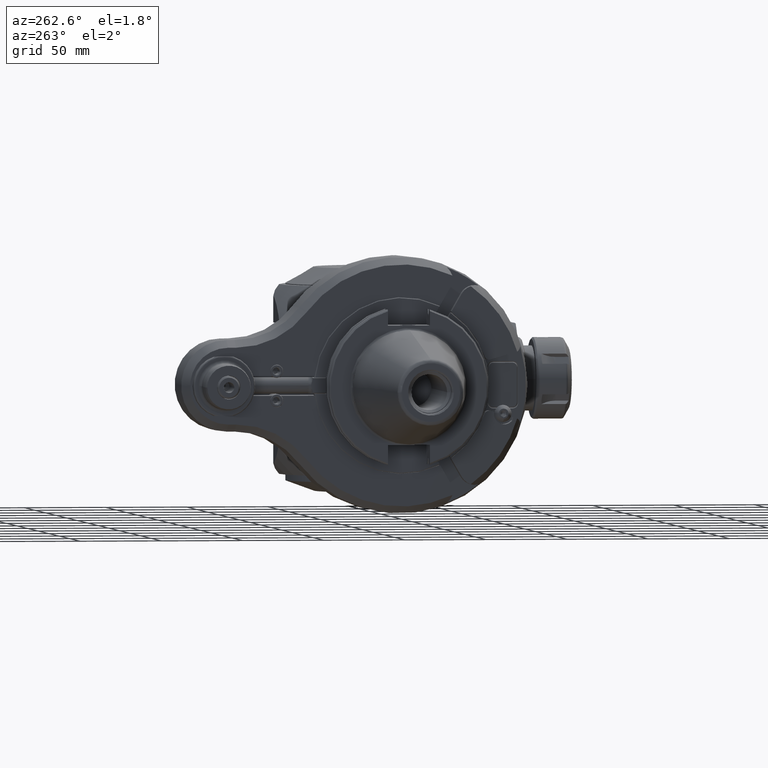
[diagram: clean part render]
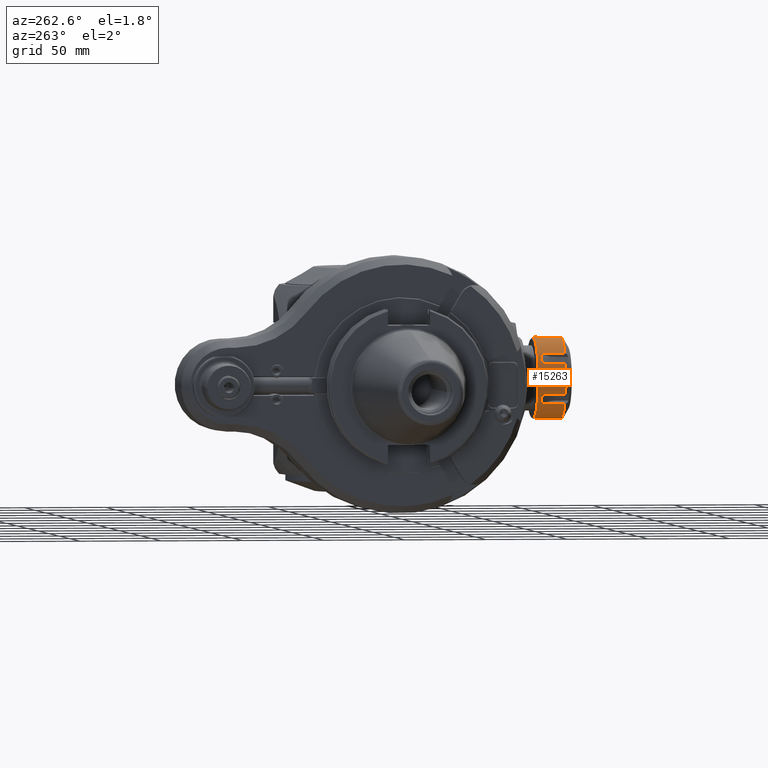
[diagram: same view with one face highlighted and labeled with its STEP entity id]
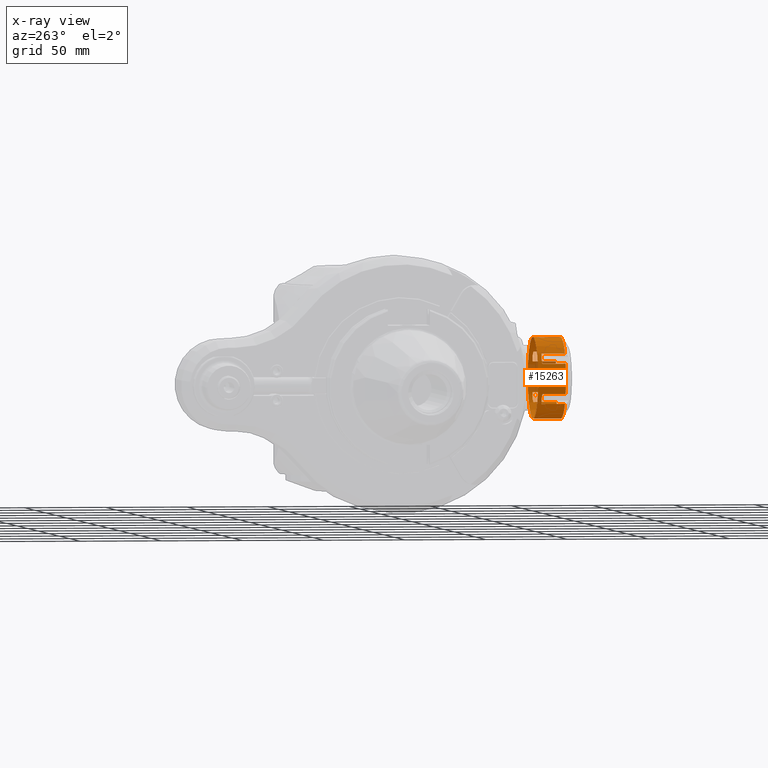
[diagram: x-ray of the same camera — body ghosted, the highlighted face saturated]
A machine part, auxiliary view. The second image highlights one B-rep face of the part: STEP entity #15263.
The next image is the same camera in x-ray: the body ghosted, the highlighted face saturated — about 13% of this face is hidden behind the body in this view.
In plain terms, the highlighted cylindrical surface (bore or boss wall) has radius 25 mm, axis along (-0, -1, -0).
Its self-contained STEP definition (entity closure, byte-faithful):
#822=B_SPLINE_CURVE_WITH_KNOTS('',3,(#40853,#40854,#40855,#40856,#40857,
#40858),.UNSPECIFIED.,.F.,.F.,(4,2,4),(1.28336863204988,1.29546874107901,
1.61589836926128),.UNSPECIFIED.);
#823=B_SPLINE_CURVE_WITH_KNOTS('',3,(#40866,#40867,#40868,#40869,#40870,
#40871,#40872,#40873,#40874,#40875),.UNSPECIFIED.,.F.,.F.,(4,2,2,2,4),(-1.94842810647365,
-1.93632799744472,-1.61589836926225,-1.29546874107978,-1.28336863205082),
 .UNSPECIFIED.);
#824=B_SPLINE_CURVE_WITH_KNOTS('',3,(#40883,#40884,#40885,#40886,#40887,
#40888,#40889,#40890,#40891,#40892),.UNSPECIFIED.,.F.,.F.,(4,2,2,2,4),(-1.94842810647313,
-1.93632799744435,-1.61589836926194,-1.29546874107953,-1.28336863205069),
 .UNSPECIFIED.);
#825=B_SPLINE_CURVE_WITH_KNOTS('',3,(#40900,#40901,#40902,#40903,#40904,
#40905,#40906,#40907,#40908,#40909),.UNSPECIFIED.,.F.,.F.,(4,2,2,2,4),(1.28336863204988,
1.29546874107901,1.61589836926128,1.93632799744356,1.94842810647227),
 .UNSPECIFIED.);
#826=B_SPLINE_CURVE_WITH_KNOTS('',3,(#40917,#40918,#40919,#40920,#40921,
#40922,#40923,#40924,#40925,#40926),.UNSPECIFIED.,.F.,.F.,(4,2,2,2,4),(1.28336863205082,
1.29546874107978,1.61589836926225,1.93632799744472,1.94842810647365),
 .UNSPECIFIED.);
#827=B_SPLINE_CURVE_WITH_KNOTS('',3,(#40934,#40935,#40936,#40937,#40938,
#40939,#40940,#40941,#40942,#40943),.UNSPECIFIED.,.F.,.F.,(4,2,2,2,4),(1.28336863205078,
1.29546874107953,1.61589836926194,1.93632799744435,1.94842810647304),
 .UNSPECIFIED.);
#828=B_SPLINE_CURVE_WITH_KNOTS('',3,(#40950,#40951,#40952,#40953,#40954,
#40955),.UNSPECIFIED.,.F.,.F.,(4,2,4),(1.61589836926128,1.93632799744356,
1.94842810647227),.UNSPECIFIED.);
#2024=FACE_OUTER_BOUND('',#3016,.T.);
#3016=EDGE_LOOP('',(#13639,#13640,#13641,#13642,#13643,#13644,#13645,#13646,
#13647,#13648,#13649,#13650,#13651,#13652,#13653,#13654,#13655,#13656,#13657,
#13658,#13659,#13660,#13661,#13662,#13663,#13664,#13665,#13666));
#4060=LINE('',#40860,#5093);
#4061=LINE('',#40864,#5094);
#4062=LINE('',#40877,#5095);
#4063=LINE('',#40881,#5096);
#4064=LINE('',#40894,#5097);
#4065=LINE('',#40898,#5098);
#4066=LINE('',#40911,#5099);
#4067=LINE('',#40915,#5100);
#4068=LINE('',#40928,#5101);
#4069=LINE('',#40932,#5102);
#4070=LINE('',#40945,#5103);
#4071=LINE('',#40949,#5104);
#4072=LINE('',#40956,#5105);
#5093=VECTOR('',#20968,14.29830773003);
#5094=VECTOR('',#20971,14.29830773003);
#5095=VECTOR('',#20972,14.29830773003);
#5096=VECTOR('',#20975,14.29830773003);
#5097=VECTOR('',#20976,14.29830773003);
#5098=VECTOR('',#20979,14.29830773003);
#5099=VECTOR('',#20980,14.29830773003);
#5100=VECTOR('',#20983,14.29830773003);
#5101=VECTOR('',#20984,14.29830773003);
#5102=VECTOR('',#20987,14.29830773003);
#5103=VECTOR('',#20988,14.29830773003);
#5104=VECTOR('',#20991,14.29830773003);
#5105=VECTOR('',#20992,25.);
#5923=CIRCLE('',#16925,25.);
#5924=CIRCLE('',#16927,25.);
#5925=CIRCLE('',#16928,25.);
#5926=CIRCLE('',#16929,25.);
#5927=CIRCLE('',#16930,25.);
#5928=CIRCLE('',#16931,25.);
#5929=CIRCLE('',#16932,25.);
#7290=VERTEX_POINT('',#40847);
#7291=VERTEX_POINT('',#40851);
#7292=VERTEX_POINT('',#40852);
#7293=VERTEX_POINT('',#40859);
#7294=VERTEX_POINT('',#40861);
#7295=VERTEX_POINT('',#40863);
#7296=VERTEX_POINT('',#40865);
#7297=VERTEX_POINT('',#40876);
#7298=VERTEX_POINT('',#40878);
#7299=VERTEX_POINT('',#40880);
#7300=VERTEX_POINT('',#40882);
#7301=VERTEX_POINT('',#40893);
#7302=VERTEX_POINT('',#40895);
#7303=VERTEX_POINT('',#40897);
#7304=VERTEX_POINT('',#40899);
#7305=VERTEX_POINT('',#40910);
#7306=VERTEX_POINT('',#40912);
#7307=VERTEX_POINT('',#40914);
#7308=VERTEX_POINT('',#40916);
#7309=VERTEX_POINT('',#40927);
#7310=VERTEX_POINT('',#40929);
#7311=VERTEX_POINT('',#40931);
#7312=VERTEX_POINT('',#40933);
#7313=VERTEX_POINT('',#40944);
#7314=VERTEX_POINT('',#40946);
#7315=VERTEX_POINT('',#40948);
#9443=EDGE_CURVE('',#7290,#7290,#5923,.T.);
#9445=EDGE_CURVE('',#7291,#7292,#822,.T.);
#9446=EDGE_CURVE('',#7291,#7293,#4060,.T.);
#9447=EDGE_CURVE('',#7294,#7293,#5924,.T.);
#9448=EDGE_CURVE('',#7294,#7295,#4061,.T.);
#9449=EDGE_CURVE('',#7295,#7296,#823,.T.);
#9450=EDGE_CURVE('',#7296,#7297,#4062,.T.);
#9451=EDGE_CURVE('',#7298,#7297,#5925,.T.);
#9452=EDGE_CURVE('',#7298,#7299,#4063,.T.);
#9453=EDGE_CURVE('',#7299,#7300,#824,.T.);
#9454=EDGE_CURVE('',#7300,#7301,#4064,.T.);
#9455=EDGE_CURVE('',#7302,#7301,#5926,.T.);
#9456=EDGE_CURVE('',#7302,#7303,#4065,.T.);
#9457=EDGE_CURVE('',#7304,#7303,#825,.T.);
#9458=EDGE_CURVE('',#7304,#7305,#4066,.T.);
#9459=EDGE_CURVE('',#7306,#7305,#5927,.T.);
#9460=EDGE_CURVE('',#7306,#7307,#4067,.T.);
#9461=EDGE_CURVE('',#7308,#7307,#826,.T.);
#9462=EDGE_CURVE('',#7308,#7309,#4068,.T.);
#9463=EDGE_CURVE('',#7310,#7309,#5928,.T.);
#9464=EDGE_CURVE('',#7310,#7311,#4069,.T.);
#9465=EDGE_CURVE('',#7312,#7311,#827,.T.);
#9466=EDGE_CURVE('',#7312,#7313,#4070,.T.);
#9467=EDGE_CURVE('',#7314,#7313,#5929,.T.);
#9468=EDGE_CURVE('',#7314,#7315,#4071,.T.);
#9469=EDGE_CURVE('',#7292,#7315,#828,.T.);
#9470=EDGE_CURVE('',#7292,#7290,#4072,.T.);
#13639=ORIENTED_EDGE('',*,*,#9445,.F.);
#13640=ORIENTED_EDGE('',*,*,#9446,.T.);
#13641=ORIENTED_EDGE('',*,*,#9447,.F.);
#13642=ORIENTED_EDGE('',*,*,#9448,.T.);
#13643=ORIENTED_EDGE('',*,*,#9449,.T.);
#13644=ORIENTED_EDGE('',*,*,#9450,.T.);
#13645=ORIENTED_EDGE('',*,*,#9451,.F.);
#13646=ORIENTED_EDGE('',*,*,#9452,.T.);
#13647=ORIENTED_EDGE('',*,*,#9453,.T.);
#13648=ORIENTED_EDGE('',*,*,#9454,.T.);
#13649=ORIENTED_EDGE('',*,*,#9455,.F.);
#13650=ORIENTED_EDGE('',*,*,#9456,.T.);
#13651=ORIENTED_EDGE('',*,*,#9457,.F.);
#13652=ORIENTED_EDGE('',*,*,#9458,.T.);
#13653=ORIENTED_EDGE('',*,*,#9459,.F.);
#13654=ORIENTED_EDGE('',*,*,#9460,.T.);
#13655=ORIENTED_EDGE('',*,*,#9461,.F.);
#13656=ORIENTED_EDGE('',*,*,#9462,.T.);
#13657=ORIENTED_EDGE('',*,*,#9463,.F.);
#13658=ORIENTED_EDGE('',*,*,#9464,.T.);
#13659=ORIENTED_EDGE('',*,*,#9465,.F.);
#13660=ORIENTED_EDGE('',*,*,#9466,.T.);
#13661=ORIENTED_EDGE('',*,*,#9467,.F.);
#13662=ORIENTED_EDGE('',*,*,#9468,.T.);
#13663=ORIENTED_EDGE('',*,*,#9469,.F.);
#13664=ORIENTED_EDGE('',*,*,#9470,.T.);
#13665=ORIENTED_EDGE('',*,*,#9443,.F.);
#13666=ORIENTED_EDGE('',*,*,#9470,.F.);
#14472=CYLINDRICAL_SURFACE('',#16926,25.);
#15263=ADVANCED_FACE('',(#2024),#14472,.T.);
#16925=AXIS2_PLACEMENT_3D('',#40848,#20963,#20964);
#16926=AXIS2_PLACEMENT_3D('',#40850,#20966,#20967);
#16927=AXIS2_PLACEMENT_3D('',#40862,#20969,#20970);
#16928=AXIS2_PLACEMENT_3D('',#40879,#20973,#20974);
#16929=AXIS2_PLACEMENT_3D('',#40896,#20977,#20978);
#16930=AXIS2_PLACEMENT_3D('',#40913,#20981,#20982);
#16931=AXIS2_PLACEMENT_3D('',#40930,#20985,#20986);
#16932=AXIS2_PLACEMENT_3D('',#40947,#20989,#20990);
#20963=DIRECTION('center_axis',(-1.11022302462516E-16,0.,1.));
#20964=DIRECTION('ref_axis',(0.866025406460983,-0.49999999536409,9.61481346163345E-17));
#20966=DIRECTION('center_axis',(1.11022302462516E-16,0.,-1.));
#20967=DIRECTION('ref_axis',(-0.866025406460983,0.49999999536409,-9.61481346163345E-17));
#20968=DIRECTION('',(-4.75200634858046E-14,-2.186544097648E-14,-1.));
#20969=DIRECTION('center_axis',(1.11022302462516E-16,0.,-1.));
#20970=DIRECTION('ref_axis',(0.927319819793781,0.374269891679292,1.02953181512631E-16));
#20971=DIRECTION('',(1.32776647975042E-14,-2.13684991361E-14,1.));
#20972=DIRECTION('',(-1.8945907664275E-14,-3.180427778396E-14,-1.));
#20973=DIRECTION('center_axis',(1.11022302462516E-16,0.,-1.));
#20974=DIRECTION('ref_axis',(0.139532675830897,0.990217467213879,1.54912389395021E-17));
#20975=DIRECTION('',(-1.55294325117008E-16,0.,1.));
#20976=DIRECTION('',(1.55294325117008E-16,-3.329510330508E-14,-1.));
#20977=DIRECTION('center_axis',(1.11022302462516E-16,0.,-1.));
#20978=DIRECTION('ref_axis',(-0.787787143962793,0.615947575534595,-8.74619425731189E-17));
#20979=DIRECTION('',(-1.55294325117008E-16,0.,1.));
#20980=DIRECTION('',(3.30776912499228E-14,-1.043577864786E-14,-1.));
#20981=DIRECTION('center_axis',(1.11022302462516E-16,0.,-1.));
#20982=DIRECTION('ref_axis',(-0.927319819793781,-0.374269891679292,-1.02953181512631E-16));
#20983=DIRECTION('',(-1.35882534477382E-14,1.689602257273E-14,1.));
#20984=DIRECTION('',(2.27506186296417E-14,2.782874306097E-14,-1.));
#20985=DIRECTION('center_axis',(1.11022302462516E-16,0.,-1.));
#20986=DIRECTION('ref_axis',(-0.139532675830995,-0.990217467213865,-1.54912389395129E-17));
#20987=DIRECTION('',(-1.20353101965681E-14,0.,1.));
#20988=DIRECTION('',(1.55294325117008E-16,3.180427778396E-14,-1.));
#20989=DIRECTION('center_axis',(1.11022302462516E-16,0.,-1.));
#20990=DIRECTION('ref_axis',(0.787787143962793,-0.615947575534595,8.74619425731189E-17));
#20991=DIRECTION('',(-1.55294325117008E-16,0.,1.));
#20992=DIRECTION('',(-1.11022302462516E-16,0.,1.));
#40847=CARTESIAN_POINT('',(81.6506351615171,-12.4999998841,-98.4999999999989));
#40848=CARTESIAN_POINT('Origin',(59.9999999999971,0.,-98.4999999999989));
#40850=CARTESIAN_POINT('Origin',(59.9999999999971,0.,-106.999999999999));
#40851=CARTESIAN_POINT('',(83.1829955950171,-9.35674704378001,-101.335666866199));
#40852=CARTESIAN_POINT('',(81.6506351615217,-12.4999998841022,-101.000000000002));
#40853=CARTESIAN_POINT('Ctrl Pts',(83.1829955950178,-9.35674704377816,-101.335666866189));
#40854=CARTESIAN_POINT('Ctrl Pts',(83.166926599338,-9.39656082246828,-101.327200677309));
#40855=CARTESIAN_POINT('Ctrl Pts',(83.1507401385369,-9.43637008134603,-101.318900040097));
#40856=CARTESIAN_POINT('Ctrl Pts',(82.7027388539157,-10.5300888594676,-101.095336993537));
#40857=CARTESIAN_POINT('Ctrl Pts',(82.1846845368738,-11.5749992208066,-101.000000000002));
#40858=CARTESIAN_POINT('Ctrl Pts',(81.6506351615217,-12.4999998841022,-101.000000000002));
#40859=CARTESIAN_POINT('',(83.1829955950171,-9.35674704378001,-115.633974596199));
#40860=CARTESIAN_POINT('',(83.1829955950171,-9.35674704378001,-101.335666866199));
#40861=CARTESIAN_POINT('',(83.1829954948371,9.35674729197999,-115.633974596199));
#40862=CARTESIAN_POINT('Origin',(59.9999999999971,0.,-115.633974596199));
#40863=CARTESIAN_POINT('',(83.1829954948371,9.35674729197999,-101.335666866199));
#40864=CARTESIAN_POINT('',(83.1829954948371,9.35674729197999,-115.633974596199));
#40865=CARTESIAN_POINT('',(79.6946784342071,15.39868959922,-101.335666866199));
#40866=CARTESIAN_POINT('Ctrl Pts',(83.1829954948429,9.35674729197912,-101.335666866184));
#40867=CARTESIAN_POINT('Ctrl Pts',(83.1669264987372,9.39656107049655,-101.327200677304));
#40868=CARTESIAN_POINT('Ctrl Pts',(83.1507400375101,9.43637032920037,-101.318900040092));
#40869=CARTESIAN_POINT('Ctrl Pts',(82.7027387411794,10.5300891025256,-101.095336993532));
#40870=CARTESIAN_POINT('Ctrl Pts',(82.1846844129503,11.5749994583189,-100.999999999997));
#40871=CARTESIAN_POINT('Ctrl Pts',(81.1165856424389,13.4250007734761,-100.999999999997));
#40872=CARTESIAN_POINT('Ctrl Pts',(80.4706938833622,14.3961041532446,-101.095336993532));
#40873=CARTESIAN_POINT('Ctrl Pts',(79.7475062792233,15.3309440357155,-101.318900040092));
#40874=CARTESIAN_POINT('Ctrl Pts',(79.7211236801303,15.364866551405,-101.327200677304));
#40875=CARTESIAN_POINT('Ctrl Pts',(79.6946784342043,15.3986895992216,-101.335666866184));
#40876=CARTESIAN_POINT('',(79.6946784342071,15.39868959922,-115.633974596199));
#40877=CARTESIAN_POINT('',(79.6946784342071,15.39868959922,-101.335666866199));
#40878=CARTESIAN_POINT('',(63.4883168957711,24.75543668035,-115.633974596199));
#40879=CARTESIAN_POINT('Origin',(59.9999999999971,0.,-115.633974596199));
#40880=CARTESIAN_POINT('',(63.4883168957711,24.75543668035,-101.335666866199));
#40881=CARTESIAN_POINT('',(63.4883168957711,24.75543668035,-115.633974596199));
#40882=CARTESIAN_POINT('',(56.5116828391891,24.755436643,-101.335666866199));
#40883=CARTESIAN_POINT('Ctrl Pts',(63.4883168957734,24.7554366803464,-101.335666866185));
#40884=CARTESIAN_POINT('Ctrl Pts',(63.4458026541043,24.7614274107642,-101.327200677305));
#40885=CARTESIAN_POINT('Ctrl Pts',(63.403233594148,24.767314153496,-101.318900040093));
#40886=CARTESIAN_POINT('Ctrl Pts',(62.2320447036878,24.9261930366078,-101.095336993534));
#40887=CARTESIAN_POINT('Ctrl Pts',(61.0680986267791,25.0000000057176,-100.999999999999));
#40888=CARTESIAN_POINT('Ctrl Pts',(58.931901105563,24.9999999942824,-100.999999999999));
#40889=CARTESIAN_POINT('Ctrl Pts',(57.7679550294445,24.9261930127113,-101.095336993534));
#40890=CARTESIAN_POINT('Ctrl Pts',(56.596766140685,24.7673141170607,-101.318900040093));
#40891=CARTESIAN_POINT('Ctrl Pts',(56.5541970807915,24.7614273738731,-101.327200677305));
#40892=CARTESIAN_POINT('Ctrl Pts',(56.5116828391863,24.7554366430001,-101.335666866185));
#40893=CARTESIAN_POINT('',(56.5116828391901,24.755436643,-115.633974596199));
#40894=CARTESIAN_POINT('',(56.5116828391891,24.755436643,-101.335666866199));
#40895=CARTESIAN_POINT('',(40.3053214009271,15.39868938836,-115.633974596199));
#40896=CARTESIAN_POINT('Origin',(59.9999999999971,0.,-115.633974596199));
#40897=CARTESIAN_POINT('',(40.3053214009271,15.39868938836,-101.335666866199));
#40898=CARTESIAN_POINT('',(40.3053214009271,15.39868938836,-115.633974596199));
#40899=CARTESIAN_POINT('',(36.8170044049771,9.35674704377999,-101.335666866199));
#40900=CARTESIAN_POINT('Ctrl Pts',(36.8170044049764,9.35674704377815,-101.335666866189));
#40901=CARTESIAN_POINT('Ctrl Pts',(36.8330734006562,9.39656082246827,-101.327200677309));
#40902=CARTESIAN_POINT('Ctrl Pts',(36.8492598614573,9.43637008134603,-101.318900040097));
#40903=CARTESIAN_POINT('Ctrl Pts',(37.2972611460786,10.5300888594676,-101.095336993537));
#40904=CARTESIAN_POINT('Ctrl Pts',(37.8153154631203,11.5749992208066,-101.000000000002));
#40905=CARTESIAN_POINT('Ctrl Pts',(38.8834142138247,13.4250005473979,-101.000000000002));
#40906=CARTESIAN_POINT('Ctrl Pts',(39.5293059625042,14.3961039340808,-101.095336993537));
#40907=CARTESIAN_POINT('Ctrl Pts',(40.2524935566334,15.3309438242931,-101.318900040096));
#40908=CARTESIAN_POINT('Ctrl Pts',(40.2788761553628,15.3648663402644,-101.327200677308));
#40909=CARTESIAN_POINT('Ctrl Pts',(40.3053214009262,15.3986893883635,-101.335666866188));
#40910=CARTESIAN_POINT('',(36.8170044049771,9.35674704377999,-115.633974596199));
#40911=CARTESIAN_POINT('',(36.8170044049771,9.35674704377999,-101.335666866199));
#40912=CARTESIAN_POINT('',(36.8170045051571,-9.35674729197999,-115.633974596199));
#40913=CARTESIAN_POINT('Origin',(59.9999999999971,0.,-115.633974596199));
#40914=CARTESIAN_POINT('',(36.8170045051571,-9.35674729197999,-101.335666866199));
#40915=CARTESIAN_POINT('',(36.8170045051571,-9.35674729197999,-115.633974596199));
#40916=CARTESIAN_POINT('',(40.3053215657871,-15.39868959922,-101.335666866199));
#40917=CARTESIAN_POINT('Ctrl Pts',(40.3053215657899,-15.3986895992216,-101.335666866184));
#40918=CARTESIAN_POINT('Ctrl Pts',(40.2788763198639,-15.364866551405,-101.327200677304));
#40919=CARTESIAN_POINT('Ctrl Pts',(40.2524937207709,-15.3309440357155,-101.318900040092));
#40920=CARTESIAN_POINT('Ctrl Pts',(39.529306116632,-14.3961041532446,-101.095336993532));
#40921=CARTESIAN_POINT('Ctrl Pts',(38.8834143575553,-13.4250007734761,-100.999999999997));
#40922=CARTESIAN_POINT('Ctrl Pts',(37.8153155870439,-11.5749994583189,-100.999999999997));
#40923=CARTESIAN_POINT('Ctrl Pts',(37.2972612588148,-10.5300891025256,-101.095336993532));
#40924=CARTESIAN_POINT('Ctrl Pts',(36.8492599624841,-9.43637032920038,-101.318900040092));
#40925=CARTESIAN_POINT('Ctrl Pts',(36.833073501257,-9.39656107049656,-101.327200677304));
#40926=CARTESIAN_POINT('Ctrl Pts',(36.8170045051513,-9.35674729197912,-101.335666866184));
#40927=CARTESIAN_POINT('',(40.3053215657871,-15.39868959922,-115.633974596199));
#40928=CARTESIAN_POINT('',(40.3053215657871,-15.39868959922,-101.335666866199));
#40929=CARTESIAN_POINT('',(56.5116831042231,-24.75543668035,-115.633974596199));
#40930=CARTESIAN_POINT('Origin',(59.9999999999971,0.,-115.633974596199));
#40931=CARTESIAN_POINT('',(56.5116831042241,-24.75543668035,-101.335666866199));
#40932=CARTESIAN_POINT('',(56.5116831042231,-24.75543668035,-115.633974596199));
#40933=CARTESIAN_POINT('',(63.4883171608041,-24.755436643,-101.335666866199));
#40934=CARTESIAN_POINT('Ctrl Pts',(63.4883171608069,-24.7554366430003,-101.335666866185));
#40935=CARTESIAN_POINT('Ctrl Pts',(63.4458029192021,-24.7614273738731,-101.327200677305));
#40936=CARTESIAN_POINT('Ctrl Pts',(63.4032338593089,-24.7673141170607,-101.318900040093));
#40937=CARTESIAN_POINT('Ctrl Pts',(62.2320449705497,-24.9261930127113,-101.095336993534));
#40938=CARTESIAN_POINT('Ctrl Pts',(61.0680988944312,-24.9999999942824,-100.999999999999));
#40939=CARTESIAN_POINT('Ctrl Pts',(58.9319013732151,-25.0000000057176,-100.999999999999));
#40940=CARTESIAN_POINT('Ctrl Pts',(57.7679552963064,-24.9261930366078,-101.095336993534));
#40941=CARTESIAN_POINT('Ctrl Pts',(56.5967664058466,-24.767314153496,-101.318900040093));
#40942=CARTESIAN_POINT('Ctrl Pts',(56.5541973458905,-24.7614274107643,-101.327200677305));
#40943=CARTESIAN_POINT('Ctrl Pts',(56.5116831042218,-24.7554366803466,-101.335666866185));
#40944=CARTESIAN_POINT('',(63.4883171608041,-24.755436643,-115.633974596199));
#40945=CARTESIAN_POINT('',(63.4883171608051,-24.755436643,-101.335666866199));
#40946=CARTESIAN_POINT('',(79.6946785990671,-15.39868938836,-115.633974596199));
#40947=CARTESIAN_POINT('Origin',(59.9999999999971,0.,-115.633974596199));
#40948=CARTESIAN_POINT('',(79.6946785990671,-15.39868938836,-101.335666866199));
#40949=CARTESIAN_POINT('',(79.6946785990671,-15.39868938836,-115.633974596199));
#40950=CARTESIAN_POINT('Ctrl Pts',(81.6506351615217,-12.4999998841022,-101.000000000002));
#40951=CARTESIAN_POINT('Ctrl Pts',(81.1165857861695,-13.4250005473979,-101.000000000002));
#40952=CARTESIAN_POINT('Ctrl Pts',(80.47069403749,-14.3961039340808,-101.095336993537));
#40953=CARTESIAN_POINT('Ctrl Pts',(79.7475064433608,-15.3309438242931,-101.318900040096));
#40954=CARTESIAN_POINT('Ctrl Pts',(79.7211238446314,-15.3648663402644,-101.327200677308));
#40955=CARTESIAN_POINT('Ctrl Pts',(79.694678599068,-15.3986893883635,-101.335666866188));
#40956=CARTESIAN_POINT('',(81.6506351615217,-12.4999998841022,-106.999999999999));